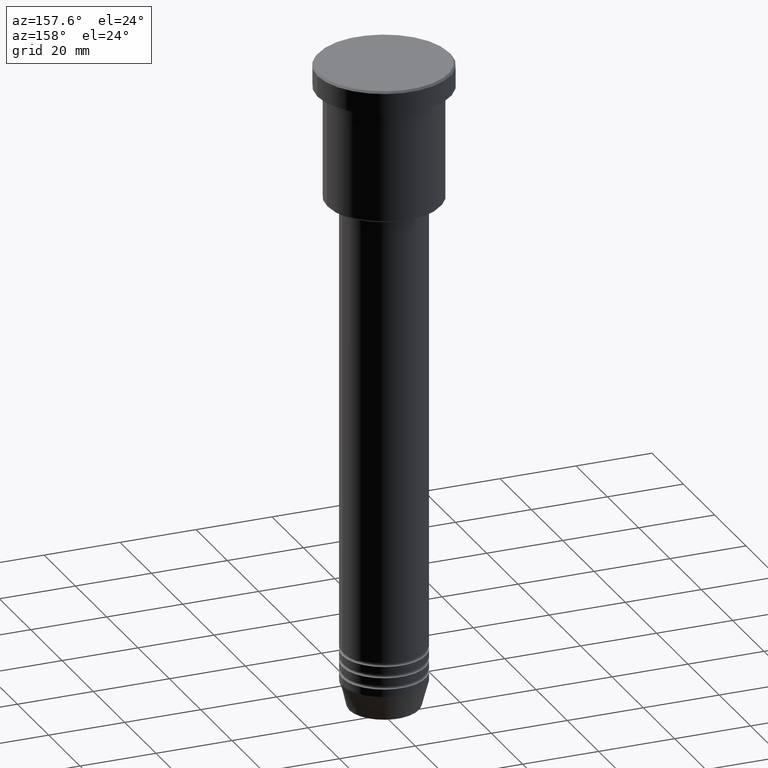
[diagram: clean part render]
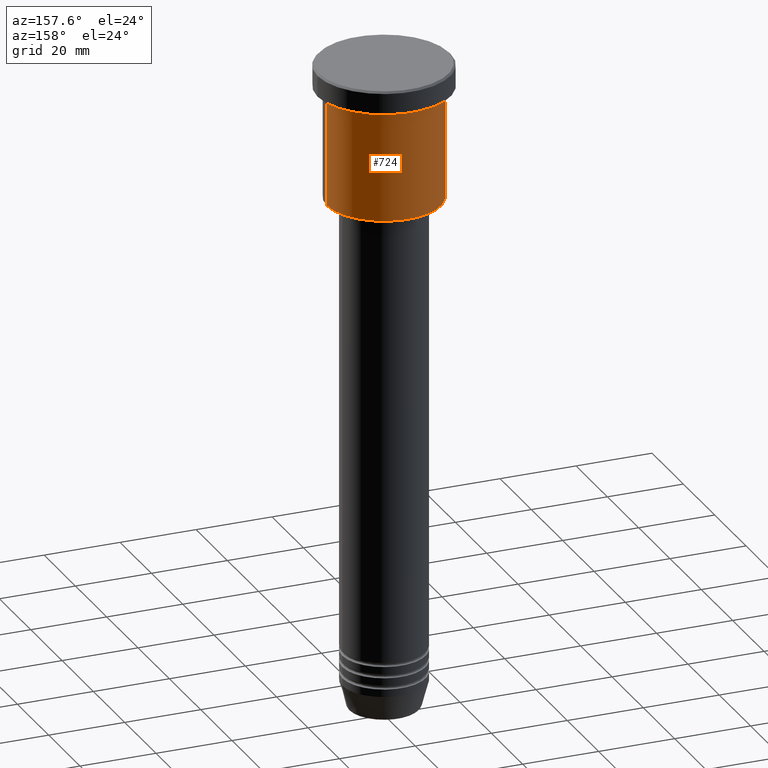
[diagram: same view with one face highlighted and labeled with its STEP entity id]
A machine part, auxiliary view. The second image highlights one B-rep face of the part: STEP entity #724.
In plain terms, the highlighted cylindrical surface (partial cylindrical patch) has radius 15 mm, axis along (-0, -0, 1).
Its self-contained STEP definition (entity closure, byte-faithful):
#8 = VECTOR ( 'NONE', #693, 1000.000000000000000 ) ;
#77 = VECTOR ( 'NONE', #768, 1000.000000000000000 ) ;
#106 = CARTESIAN_POINT ( 'NONE',  ( -15.00000000000000000, 1.836970198721029589E-15, 0.000000000000000000 ) ) ;
#115 = ORIENTED_EDGE ( 'NONE', *, *, #1107, .T. ) ;
#169 = DIRECTION ( 'NONE',  ( -0.000000000000000000, -0.000000000000000000, 1.000000000000000000 ) ) ;
#174 = DIRECTION ( 'NONE',  ( -0.000000000000000000, -0.000000000000000000, 1.000000000000000000 ) ) ;
#178 = EDGE_CURVE ( 'NONE', #608, #1142, #850, .T. ) ;
#244 = CIRCLE ( 'NONE', #975, 15.00000000000000000 ) ;
#267 = FACE_OUTER_BOUND ( 'NONE', #402, .T. ) ;
#292 = EDGE_CURVE ( 'NONE', #625, #495, #298, .T. ) ;
#297 = CARTESIAN_POINT ( 'NONE',  ( -15.00000000000000000, 1.836970198721029589E-15, -35.49999999999996447 ) ) ;
#298 = LINE ( 'NONE', #106, #8 ) ;
#330 = ORIENTED_EDGE ( 'NONE', *, *, #178, .F. ) ;
#351 = CARTESIAN_POINT ( 'NONE',  ( -15.00000000000000000, 1.836970198721029589E-15, -6.999999999999995559 ) ) ;
#398 = AXIS2_PLACEMENT_3D ( 'NONE', #429, #174, #531 ) ;
#402 = EDGE_LOOP ( 'NONE', ( #115, #808, #641, #330 ) ) ;
#408 = CARTESIAN_POINT ( 'NONE',  ( 15.00000000000000000, 0.000000000000000000, 0.000000000000000000 ) ) ;
#418 = CIRCLE ( 'NONE', #454, 15.00000000000000000 ) ;
#429 = CARTESIAN_POINT ( 'NONE',  ( 0.000000000000000000, 0.000000000000000000, 0.000000000000000000 ) ) ;
#454 = AXIS2_PLACEMENT_3D ( 'NONE', #765, #169, #983 ) ;
#489 = CARTESIAN_POINT ( 'NONE',  ( 15.00000000000000000, 0.000000000000000000, -35.49999999999996447 ) ) ;
#495 = VERTEX_POINT ( 'NONE', #351 ) ;
#531 = DIRECTION ( 'NONE',  ( 1.000000000000000000, 0.000000000000000000, 0.000000000000000000 ) ) ;
#605 = CARTESIAN_POINT ( 'NONE',  ( 15.00000000000000000, 0.000000000000000000, -6.999999999999995559 ) ) ;
#608 = VERTEX_POINT ( 'NONE', #489 ) ;
#625 = VERTEX_POINT ( 'NONE', #297 ) ;
#641 = ORIENTED_EDGE ( 'NONE', *, *, #710, .F. ) ;
#693 = DIRECTION ( 'NONE',  ( -0.000000000000000000, -0.000000000000000000, 1.000000000000000000 ) ) ;
#710 = EDGE_CURVE ( 'NONE', #1142, #495, #418, .T. ) ;
#724 = ADVANCED_FACE ( 'NONE', ( #267 ), #803, .T. ) ;
#765 = CARTESIAN_POINT ( 'NONE',  ( 0.000000000000000000, 0.000000000000000000, -6.999999999999995559 ) ) ;
#768 = DIRECTION ( 'NONE',  ( -0.000000000000000000, -0.000000000000000000, 1.000000000000000000 ) ) ;
#803 = CYLINDRICAL_SURFACE ( 'NONE', #398, 15.00000000000000000 ) ;
#808 = ORIENTED_EDGE ( 'NONE', *, *, #292, .T. ) ;
#850 = LINE ( 'NONE', #408, #77 ) ;
#961 = DIRECTION ( 'NONE',  ( -1.000000000000000000, 0.000000000000000000, 0.000000000000000000 ) ) ;
#967 = CARTESIAN_POINT ( 'NONE',  ( 0.000000000000000000, 0.000000000000000000, -35.49999999999996447 ) ) ;
#975 = AXIS2_PLACEMENT_3D ( 'NONE', #967, #1129, #961 ) ;
#983 = DIRECTION ( 'NONE',  ( 1.000000000000000000, 0.000000000000000000, 0.000000000000000000 ) ) ;
#1107 = EDGE_CURVE ( 'NONE', #608, #625, #244, .T. ) ;
#1129 = DIRECTION ( 'NONE',  ( -0.000000000000000000, -0.000000000000000000, 1.000000000000000000 ) ) ;
#1142 = VERTEX_POINT ( 'NONE', #605 ) ;